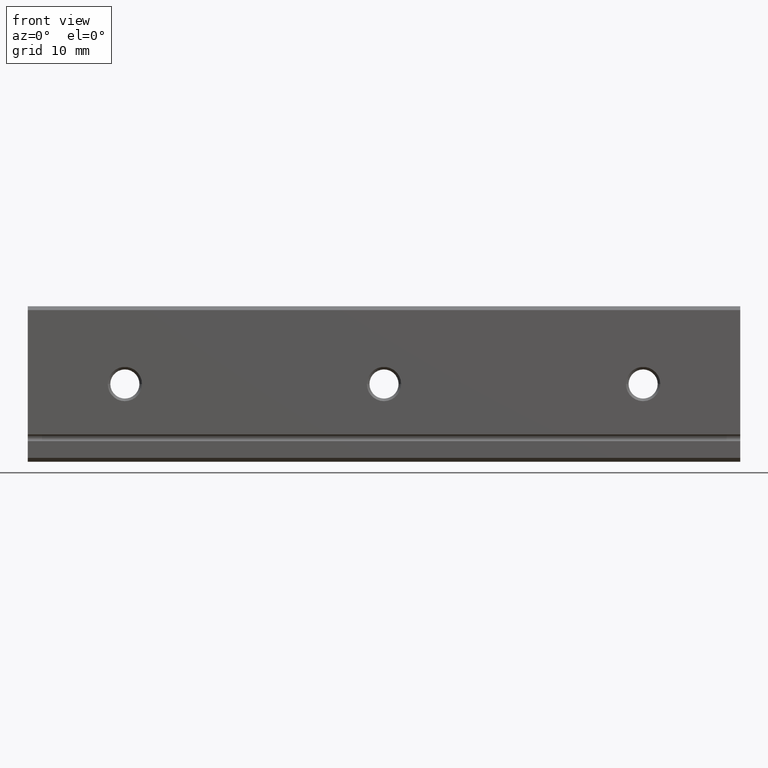
[diagram: clean part render]
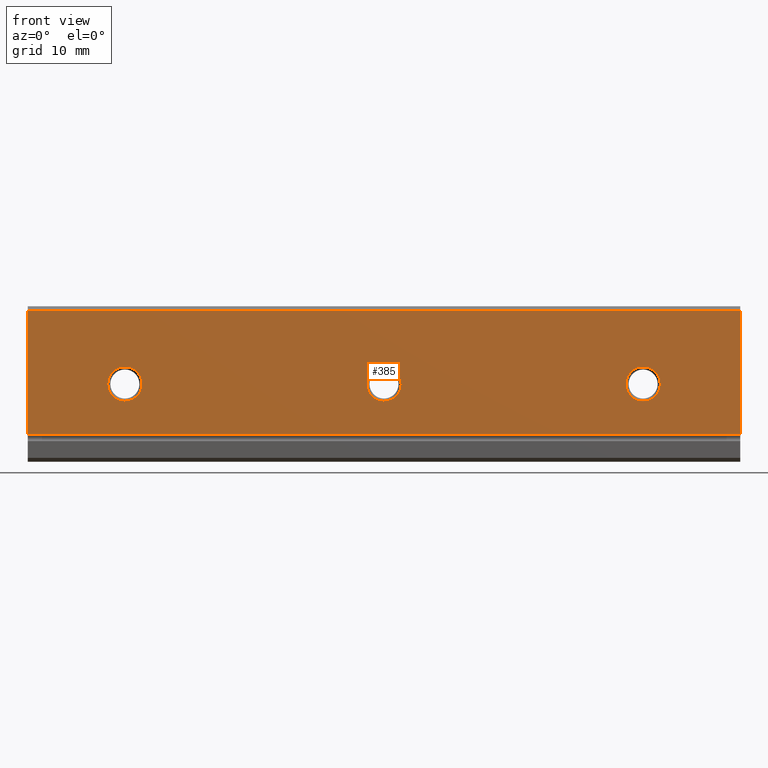
[diagram: same view with one face highlighted and labeled with its STEP entity id]
A machine part, front view. The second image highlights one B-rep face of the part: STEP entity #385.
In plain terms, the highlighted planar face has unit normal (0, -1, -0).
Its self-contained STEP definition (entity closure, byte-faithful):
#156 = VERTEX_POINT ( 'NONE', #762 ) ;
#184 = EDGE_CURVE ( 'NONE', #423, #218, #837, .T. ) ;
#187 = ORIENTED_EDGE ( 'NONE', *, *, #212, .F. ) ;
#188 = ORIENTED_EDGE ( 'NONE', *, *, #412, .T. ) ;
#189 = EDGE_CURVE ( 'NONE', #156, #229, #831, .T. ) ;
#190 = ORIENTED_EDGE ( 'NONE', *, *, #189, .F. ) ;
#192 = ORIENTED_EDGE ( 'NONE', *, *, #236, .T. ) ;
#193 = VERTEX_POINT ( 'NONE', #827 ) ;
#194 = ORIENTED_EDGE ( 'NONE', *, *, #195, .T. ) ;
#195 = EDGE_CURVE ( 'NONE', #467, #193, #826, .T. ) ;
#206 = EDGE_LOOP ( 'NONE', ( #192, #209, #190, #264 ) ) ;
#209 = ORIENTED_EDGE ( 'NONE', *, *, #210, .T. ) ;
#210 = EDGE_CURVE ( 'NONE', #227, #229, #858, .T. ) ;
#211 = ORIENTED_EDGE ( 'NONE', *, *, #234, .F. ) ;
#212 = EDGE_CURVE ( 'NONE', #413, #218, #854, .T. ) ;
#213 = EDGE_LOOP ( 'NONE', ( #188, #221, #187 ) ) ;
#218 = VERTEX_POINT ( 'NONE', #844 ) ;
#221 = ORIENTED_EDGE ( 'NONE', *, *, #184, .T. ) ;
#227 = VERTEX_POINT ( 'NONE', #895 ) ;
#229 = VERTEX_POINT ( 'NONE', #894 ) ;
#234 = EDGE_CURVE ( 'NONE', #396, #193, #879, .T. ) ;
#236 = EDGE_CURVE ( 'NONE', #237, #227, #874, .T. ) ;
#237 = VERTEX_POINT ( 'NONE', #935 ) ;
#264 = ORIENTED_EDGE ( 'NONE', *, *, #271, .F. ) ;
#271 = EDGE_CURVE ( 'NONE', #237, #156, #993, .T. ) ;
#371 = ORIENTED_EDGE ( 'NONE', *, *, #397, .T. ) ;
#373 = EDGE_LOOP ( 'NONE', ( #371, #194, #211 ) ) ;
#374 = ORIENTED_EDGE ( 'NONE', *, *, #387, .F. ) ;
#377 = VERTEX_POINT ( 'NONE', #1091 ) ;
#378 = ORIENTED_EDGE ( 'NONE', *, *, #470, .T. ) ;
#380 = EDGE_LOOP ( 'NONE', ( #378, #388, #374 ) ) ;
#385 = ADVANCED_FACE ( 'NONE', ( #1139, #1138, #1137, #1136 ), #1135, .T. ) ;
#387 = EDGE_CURVE ( 'NONE', #471, #377, #1126, .T. ) ;
#388 = ORIENTED_EDGE ( 'NONE', *, *, #389, .T. ) ;
#389 = EDGE_CURVE ( 'NONE', #468, #377, #1186, .T. ) ;
#396 = VERTEX_POINT ( 'NONE', #1176 ) ;
#397 = EDGE_CURVE ( 'NONE', #396, #467, #1175, .T. ) ;
#412 = EDGE_CURVE ( 'NONE', #413, #423, #1206, .T. ) ;
#413 = VERTEX_POINT ( 'NONE', #1201 ) ;
#423 = VERTEX_POINT ( 'NONE', #1246 ) ;
#467 = VERTEX_POINT ( 'NONE', #1283 ) ;
#468 = VERTEX_POINT ( 'NONE', #1282 ) ;
#470 = EDGE_CURVE ( 'NONE', #471, #468, #1343, .T. ) ;
#471 = VERTEX_POINT ( 'NONE', #1338 ) ;
#762 = CARTESIAN_POINT ( 'NONE',  ( 0.0000000000000000000, -1.409462824231155800E-015, 11.39999999999999900 ) ) ;
#822 = DIRECTION ( 'NONE',  ( 0.0000000000000000000, -2.668805347656626200E-016, 1.000000000000000000 ) ) ;
#823 = DIRECTION ( 'NONE',  ( 0.0000000000000000000, 1.000000000000000000, 2.668805347656626200E-016 ) ) ;
#824 = CARTESIAN_POINT ( 'NONE',  ( -55.00000000000000000, 3.469446951953614200E-015, -7.353018871647050800E-015 ) ) ;
#825 = AXIS2_PLACEMENT_3D ( 'NONE', #824, #823, #822 ) ;
#826 = CIRCLE ( 'NONE', #825, 2.649999999999999500 ) ;
#827 = CARTESIAN_POINT ( 'NONE',  ( -57.64999999999999900, 3.469446951953614200E-015, 0.0000000000000000000 ) ) ;
#828 = DIRECTION ( 'NONE',  ( 0.0000000000000000000, 1.254156427505175200E-016, -1.000000000000000000 ) ) ;
#829 = VECTOR ( 'NONE', #828, 1000.000000000000000 ) ;
#830 = CARTESIAN_POINT ( 'NONE',  ( 0.0000000000000000000, 0.0000000000000000000, 0.0000000000000000000 ) ) ;
#831 = LINE ( 'NONE', #830, #829 ) ;
#833 = DIRECTION ( 'NONE',  ( 0.0000000000000000000, -2.668805347656626200E-016, 1.000000000000000000 ) ) ;
#834 = DIRECTION ( 'NONE',  ( 0.0000000000000000000, 1.000000000000000000, 2.668805347656626200E-016 ) ) ;
#835 = CARTESIAN_POINT ( 'NONE',  ( -15.00000000000000000, 3.469446951953614200E-015, -7.353018871647050800E-015 ) ) ;
#836 = AXIS2_PLACEMENT_3D ( 'NONE', #835, #834, #833 ) ;
#837 = CIRCLE ( 'NONE', #836, 2.649999999999997700 ) ;
#844 = CARTESIAN_POINT ( 'NONE',  ( -17.64999999999999900, 3.469446951953614200E-015, 0.0000000000000000000 ) ) ;
#850 = DIRECTION ( 'NONE',  ( 0.0000000000000000000, 1.254156427505175400E-016, -1.000000000000000000 ) ) ;
#851 = DIRECTION ( 'NONE',  ( 0.0000000000000000000, -1.000000000000000000, -1.254156427505175200E-016 ) ) ;
#852 = CARTESIAN_POINT ( 'NONE',  ( -15.00000000000000000, 1.500602356178763300E-031, 5.999597059216233200E-015 ) ) ;
#853 = AXIS2_PLACEMENT_3D ( 'NONE', #852, #851, #850 ) ;
#854 = CIRCLE ( 'NONE', #853, 2.650000000000000800 ) ;
#855 = DIRECTION ( 'NONE',  ( 1.000000000000000000, 0.0000000000000000000, 0.0000000000000000000 ) ) ;
#856 = VECTOR ( 'NONE', #855, 1000.000000000000000 ) ;
#857 = CARTESIAN_POINT ( 'NONE',  ( -110.0000000000000000, -9.757819552369539900E-016, -7.780384757729334100 ) ) ;
#858 = LINE ( 'NONE', #857, #856 ) ;
#872 = DIRECTION ( 'NONE',  ( 0.0000000000000000000, 1.260512219239239000E-016, -1.000000000000000000 ) ) ;
#873 = CARTESIAN_POINT ( 'NONE',  ( -110.0000000000000000, -1.084202172485504400E-015, 8.819615242270661100 ) ) ;
#874 = LINE ( 'NONE', #873, #936 ) ;
#875 = DIRECTION ( 'NONE',  ( 0.0000000000000000000, 1.254156427505175200E-016, -1.000000000000000000 ) ) ;
#876 = DIRECTION ( 'NONE',  ( 0.0000000000000000000, -1.000000000000000000, -1.254156427505175200E-016 ) ) ;
#877 = CARTESIAN_POINT ( 'NONE',  ( -55.00000000000000000, 1.500602356178764100E-031, 5.999597059216232400E-015 ) ) ;
#878 = AXIS2_PLACEMENT_3D ( 'NONE', #877, #876, #875 ) ;
#879 = CIRCLE ( 'NONE', #878, 2.650000000000003000 ) ;
#894 = CARTESIAN_POINT ( 'NONE',  ( 0.0000000000000000000, -9.757819552369539900E-016, -7.780384757729334100 ) ) ;
#895 = CARTESIAN_POINT ( 'NONE',  ( -110.0000000000000000, -9.757819552369539900E-016, -7.780384757729334100 ) ) ;
#935 = CARTESIAN_POINT ( 'NONE',  ( -110.0000000000000000, -1.409462824231155800E-015, 11.39999999999999900 ) ) ;
#936 = VECTOR ( 'NONE', #872, 1000.000000000000000 ) ;
#990 = DIRECTION ( 'NONE',  ( 1.000000000000000000, 0.0000000000000000000, 0.0000000000000000000 ) ) ;
#991 = VECTOR ( 'NONE', #990, 1000.000000000000000 ) ;
#992 = CARTESIAN_POINT ( 'NONE',  ( -110.0000000000000000, -1.409462824231155800E-015, 11.39999999999999900 ) ) ;
#993 = LINE ( 'NONE', #992, #991 ) ;
#1091 = CARTESIAN_POINT ( 'NONE',  ( -97.65000000000000600, 3.469446951953614200E-015, 0.0000000000000000000 ) ) ;
#1123 = DIRECTION ( 'NONE',  ( 0.0000000000000000000, -1.000000000000000000, -1.254156427505175200E-016 ) ) ;
#1124 = CARTESIAN_POINT ( 'NONE',  ( -95.00000000000000000, 1.500602356178764100E-031, 5.999597059216232400E-015 ) ) ;
#1125 = AXIS2_PLACEMENT_3D ( 'NONE', #1124, #1123, #1187 ) ;
#1126 = CIRCLE ( 'NONE', #1125, 2.650000000000003000 ) ;
#1131 = DIRECTION ( 'NONE',  ( 0.0000000000000000000, 1.254156427505175200E-016, -1.000000000000000000 ) ) ;
#1132 = DIRECTION ( 'NONE',  ( 0.0000000000000000000, -1.000000000000000000, -1.254156427505175200E-016 ) ) ;
#1133 = CARTESIAN_POINT ( 'NONE',  ( -110.0000000000000000, 0.0000000000000000000, 0.0000000000000000000 ) ) ;
#1134 = AXIS2_PLACEMENT_3D ( 'NONE', #1133, #1132, #1131 ) ;
#1135 = PLANE ( 'NONE',  #1134 ) ;
#1136 = FACE_OUTER_BOUND ( 'NONE', #206, .T. ) ;
#1137 = FACE_BOUND ( 'NONE', #213, .T. ) ;
#1138 = FACE_BOUND ( 'NONE', #373, .T. ) ;
#1139 = FACE_BOUND ( 'NONE', #380, .T. ) ;
#1171 = DIRECTION ( 'NONE',  ( 0.0000000000000000000, -2.668805347656626200E-016, 1.000000000000000000 ) ) ;
#1172 = DIRECTION ( 'NONE',  ( 0.0000000000000000000, 1.000000000000000000, 2.668805347656626200E-016 ) ) ;
#1173 = CARTESIAN_POINT ( 'NONE',  ( -55.00000000000000000, 3.469446951953614200E-015, -7.353018871647050800E-015 ) ) ;
#1174 = AXIS2_PLACEMENT_3D ( 'NONE', #1173, #1172, #1171 ) ;
#1175 = CIRCLE ( 'NONE', #1174, 2.649999999999999500 ) ;
#1176 = CARTESIAN_POINT ( 'NONE',  ( -52.35000000000000100, 3.469446951953614200E-015, 0.0000000000000000000 ) ) ;
#1182 = DIRECTION ( 'NONE',  ( 0.0000000000000000000, -2.668805347656626200E-016, 1.000000000000000000 ) ) ;
#1183 = DIRECTION ( 'NONE',  ( 0.0000000000000000000, 1.000000000000000000, 2.668805347656626200E-016 ) ) ;
#1184 = CARTESIAN_POINT ( 'NONE',  ( -95.00000000000000000, 3.469446951953614200E-015, -7.353018871647050800E-015 ) ) ;
#1185 = AXIS2_PLACEMENT_3D ( 'NONE', #1184, #1183, #1182 ) ;
#1186 = CIRCLE ( 'NONE', #1185, 2.649999999999999500 ) ;
#1187 = DIRECTION ( 'NONE',  ( 0.0000000000000000000, 1.254156427505175200E-016, -1.000000000000000000 ) ) ;
#1201 = CARTESIAN_POINT ( 'NONE',  ( -12.35000000000000100, 3.469446951953614200E-015, 0.0000000000000000000 ) ) ;
#1202 = DIRECTION ( 'NONE',  ( 0.0000000000000000000, -2.668805347656626200E-016, 1.000000000000000000 ) ) ;
#1203 = DIRECTION ( 'NONE',  ( 0.0000000000000000000, 1.000000000000000000, 2.668805347656626200E-016 ) ) ;
#1204 = CARTESIAN_POINT ( 'NONE',  ( -15.00000000000000000, 3.469446951953614200E-015, -7.353018871647050800E-015 ) ) ;
#1205 = AXIS2_PLACEMENT_3D ( 'NONE', #1204, #1203, #1202 ) ;
#1206 = CIRCLE ( 'NONE', #1205, 2.649999999999997700 ) ;
#1246 = CARTESIAN_POINT ( 'NONE',  ( -15.00000000000000000, 4.174178364069192100E-015, -2.650000000000005200 ) ) ;
#1282 = CARTESIAN_POINT ( 'NONE',  ( -95.00000000000000000, 4.174178364069192100E-015, -2.650000000000007000 ) ) ;
#1283 = CARTESIAN_POINT ( 'NONE',  ( -55.00000000000000000, 4.174178364069192100E-015, -2.650000000000007000 ) ) ;
#1338 = CARTESIAN_POINT ( 'NONE',  ( -92.35000000000000900, 3.469446951953614200E-015, 0.0000000000000000000 ) ) ;
#1339 = DIRECTION ( 'NONE',  ( 0.0000000000000000000, -2.668805347656626200E-016, 1.000000000000000000 ) ) ;
#1340 = DIRECTION ( 'NONE',  ( 0.0000000000000000000, 1.000000000000000000, 2.668805347656626200E-016 ) ) ;
#1341 = CARTESIAN_POINT ( 'NONE',  ( -95.00000000000000000, 3.469446951953614200E-015, -7.353018871647050800E-015 ) ) ;
#1342 = AXIS2_PLACEMENT_3D ( 'NONE', #1341, #1340, #1339 ) ;
#1343 = CIRCLE ( 'NONE', #1342, 2.649999999999999500 ) ;